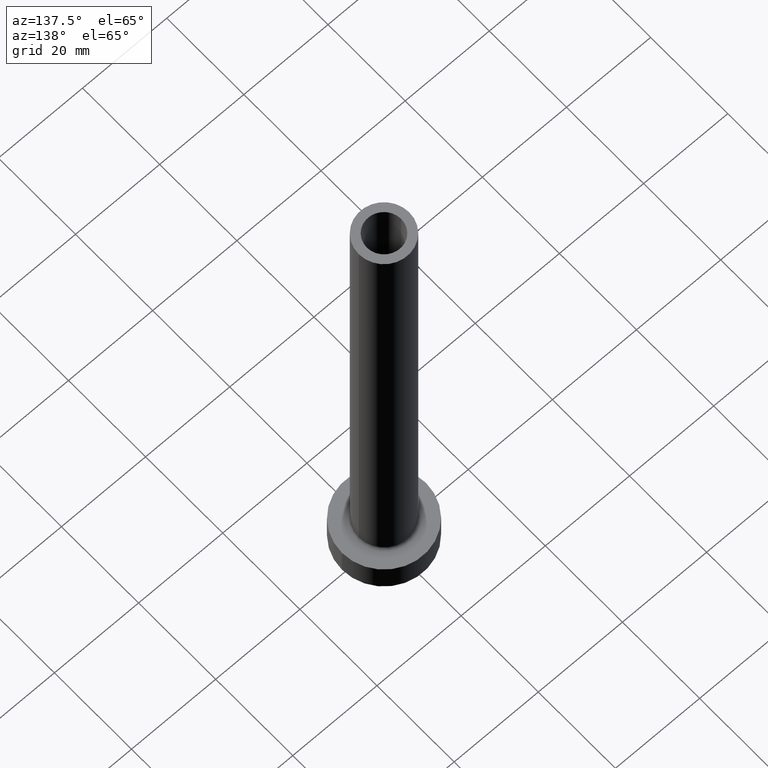
[diagram: clean part render]
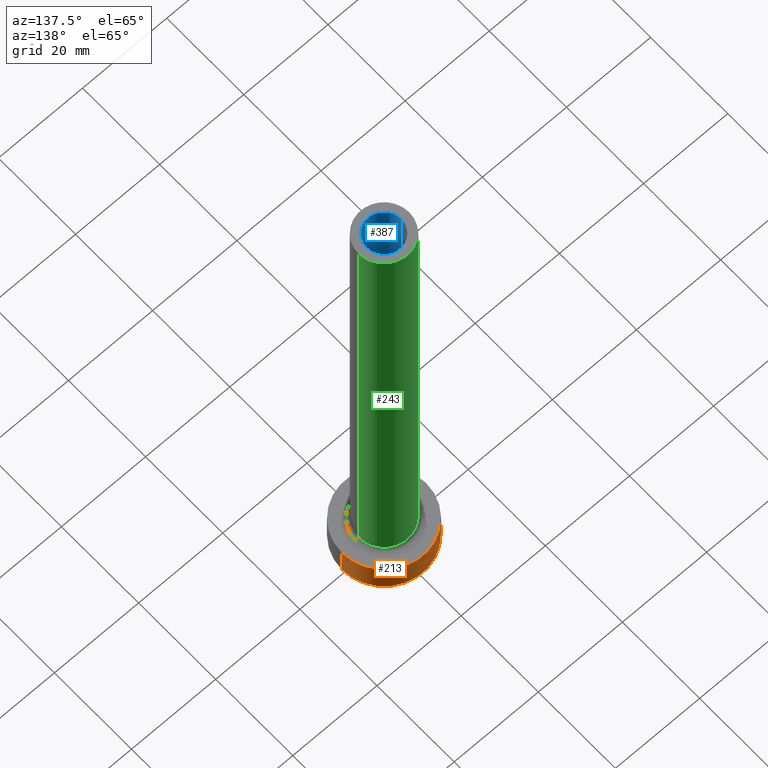
[diagram: same view with three faces highlighted in distinct colors, each labeled with its STEP entity id]
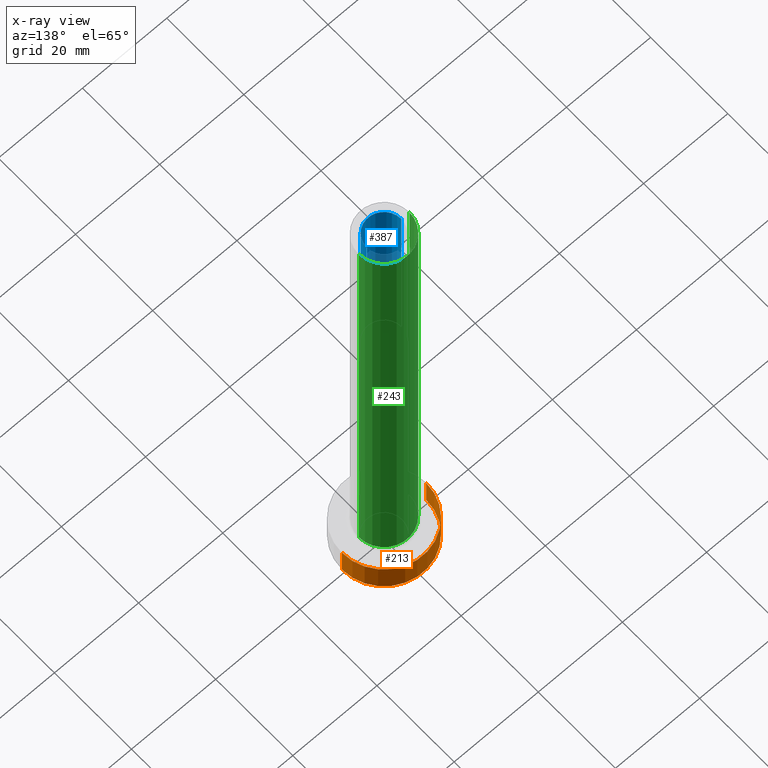
[diagram: x-ray of the same camera — body ghosted, the three highlighted faces saturated]
A machine part, auxiliary view with three faces highlighted in distinct colors.
The next image is the same camera in x-ray (body ghosted, the three faces saturated) — at least one of them is partly hidden behind the body in this view.
Their STEP definitions:

[orange] entity #213 — the highlighted cylindrical surface (partial cylindrical patch) has radius 10 mm, axis along (-0, -0, -1).
#10 = CARTESIAN_POINT ( 'NONE',  ( -10.00000000000000000, 0.000000000000000000, 7.000000000000000000 ) ) ;
#11 = EDGE_CURVE ( 'NONE', #228, #368, #233, .T. ) ;
#16 = EDGE_LOOP ( 'NONE', ( #373, #58, #302, #124 ) ) ;
#41 = AXIS2_PLACEMENT_3D ( 'NONE', #281, #67, #314 ) ;
#58 = ORIENTED_EDGE ( 'NONE', *, *, #129, .T. ) ;
#65 = VERTEX_POINT ( 'NONE', #349 ) ;
#67 = DIRECTION ( 'NONE',  ( 0.000000000000000000, 0.000000000000000000, 1.000000000000000000 ) ) ;
#68 = DIRECTION ( 'NONE',  ( -0.000000000000000000, -0.000000000000000000, -1.000000000000000000 ) ) ;
#71 = DIRECTION ( 'NONE',  ( 0.000000000000000000, 0.000000000000000000, 1.000000000000000000 ) ) ;
#106 = CARTESIAN_POINT ( 'NONE',  ( 10.00000000000000000, 1.224646799147353256E-15, 7.000000000000000000 ) ) ;
#124 = ORIENTED_EDGE ( 'NONE', *, *, #436, .F. ) ;
#129 = EDGE_CURVE ( 'NONE', #228, #459, #386, .T. ) ;
#143 = CARTESIAN_POINT ( 'NONE',  ( 0.000000000000000000, 0.000000000000000000, 7.000000000000000000 ) ) ;
#187 = VECTOR ( 'NONE', #406, 1000.000000000000000 ) ;
#191 = DIRECTION ( 'NONE',  ( -0.000000000000000000, -0.000000000000000000, -1.000000000000000000 ) ) ;
#213 = ADVANCED_FACE ( 'NONE', ( #394 ), #221, .T. ) ;
#217 = CARTESIAN_POINT ( 'NONE',  ( 10.00000000000000000, 1.224646799147353256E-15, 7.000000000000000000 ) ) ;
#221 = CYLINDRICAL_SURFACE ( 'NONE', #307, 10.00000000000000000 ) ;
#227 = EDGE_CURVE ( 'NONE', #459, #65, #457, .T. ) ;
#228 = VERTEX_POINT ( 'NONE', #217 ) ;
#231 = CARTESIAN_POINT ( 'NONE',  ( 10.00000000000000000, 1.224646799147353256E-15, 0.000000000000000000 ) ) ;
#233 = CIRCLE ( 'NONE', #41, 10.00000000000000000 ) ;
#263 = CARTESIAN_POINT ( 'NONE',  ( 0.000000000000000000, 0.000000000000000000, 0.000000000000000000 ) ) ;
#281 = CARTESIAN_POINT ( 'NONE',  ( 0.000000000000000000, 0.000000000000000000, 7.000000000000000000 ) ) ;
#302 = ORIENTED_EDGE ( 'NONE', *, *, #227, .T. ) ;
#307 = AXIS2_PLACEMENT_3D ( 'NONE', #143, #191, #430 ) ;
#314 = DIRECTION ( 'NONE',  ( 1.000000000000000000, 0.000000000000000000, 0.000000000000000000 ) ) ;
#335 = LINE ( 'NONE', #444, #187 ) ;
#349 = CARTESIAN_POINT ( 'NONE',  ( -10.00000000000000000, 0.000000000000000000, 0.000000000000000000 ) ) ;
#359 = VECTOR ( 'NONE', #68, 1000.000000000000000 ) ;
#364 = DIRECTION ( 'NONE',  ( 1.000000000000000000, 0.000000000000000000, 0.000000000000000000 ) ) ;
#368 = VERTEX_POINT ( 'NONE', #10 ) ;
#373 = ORIENTED_EDGE ( 'NONE', *, *, #11, .F. ) ;
#386 = LINE ( 'NONE', #106, #359 ) ;
#394 = FACE_OUTER_BOUND ( 'NONE', #16, .T. ) ;
#406 = DIRECTION ( 'NONE',  ( -0.000000000000000000, -0.000000000000000000, -1.000000000000000000 ) ) ;
#430 = DIRECTION ( 'NONE',  ( -1.000000000000000000, 0.000000000000000000, 0.000000000000000000 ) ) ;
#436 = EDGE_CURVE ( 'NONE', #368, #65, #335, .T. ) ;
#440 = AXIS2_PLACEMENT_3D ( 'NONE', #263, #71, #364 ) ;
#444 = CARTESIAN_POINT ( 'NONE',  ( -10.00000000000000000, 0.000000000000000000, 7.000000000000000000 ) ) ;
#457 = CIRCLE ( 'NONE', #440, 10.00000000000000000 ) ;
#459 = VERTEX_POINT ( 'NONE', #231 ) ;

[blue] entity #387 — the highlighted cylindrical surface (edge-blend (fillet) strip) has radius 4.1 mm, axis along (0, 0, -1).
#4 = DIRECTION ( 'NONE',  ( 1.000000000000000000, 0.000000000000000000, 0.000000000000000000 ) ) ;
#8 = CIRCLE ( 'NONE', #142, 4.099999999999999645 ) ;
#27 = CARTESIAN_POINT ( 'NONE',  ( -4.099999999999999645, 0.000000000000000000, 80.00000000000000000 ) ) ;
#33 = CARTESIAN_POINT ( 'NONE',  ( -4.099999999999999645, 0.000000000000000000, 125.0000000000000000 ) ) ;
#52 = VECTOR ( 'NONE', #370, 1000.000000000000000 ) ;
#56 = VERTEX_POINT ( 'NONE', #27 ) ;
#76 = LINE ( 'NONE', #289, #152 ) ;
#79 = DIRECTION ( 'NONE',  ( 1.000000000000000000, 0.000000000000000000, 0.000000000000000000 ) ) ;
#81 = CARTESIAN_POINT ( 'NONE',  ( 0.000000000000000000, 0.000000000000000000, 80.00000000000000000 ) ) ;
#86 = VERTEX_POINT ( 'NONE', #33 ) ;
#100 = VERTEX_POINT ( 'NONE', #251 ) ;
#130 = ORIENTED_EDGE ( 'NONE', *, *, #157, .T. ) ;
#142 = AXIS2_PLACEMENT_3D ( 'NONE', #81, #392, #79 ) ;
#146 = DIRECTION ( 'NONE',  ( 0.000000000000000000, 0.000000000000000000, -1.000000000000000000 ) ) ;
#152 = VECTOR ( 'NONE', #146, 1000.000000000000000 ) ;
#157 = EDGE_CURVE ( 'NONE', #245, #100, #76, .T. ) ;
#160 = LINE ( 'NONE', #201, #52 ) ;
#184 = FACE_OUTER_BOUND ( 'NONE', #197, .T. ) ;
#194 = CARTESIAN_POINT ( 'NONE',  ( 0.000000000000000000, 0.000000000000000000, 125.0000000000000000 ) ) ;
#197 = EDGE_LOOP ( 'NONE', ( #280, #130, #310, #238 ) ) ;
#201 = CARTESIAN_POINT ( 'NONE',  ( -4.099999999999999645, 0.000000000000000000, 125.0000000000000000 ) ) ;
#225 = AXIS2_PLACEMENT_3D ( 'NONE', #194, #332, #299 ) ;
#234 = AXIS2_PLACEMENT_3D ( 'NONE', #261, #298, #4 ) ;
#238 = ORIENTED_EDGE ( 'NONE', *, *, #453, .F. ) ;
#245 = VERTEX_POINT ( 'NONE', #358 ) ;
#251 = CARTESIAN_POINT ( 'NONE',  ( 4.099999999999999645, 5.021051876504146399E-16, 80.00000000000000000 ) ) ;
#261 = CARTESIAN_POINT ( 'NONE',  ( 0.000000000000000000, 0.000000000000000000, 125.0000000000000000 ) ) ;
#268 = EDGE_CURVE ( 'NONE', #86, #245, #342, .T. ) ;
#273 = CYLINDRICAL_SURFACE ( 'NONE', #225, 4.099999999999999645 ) ;
#280 = ORIENTED_EDGE ( 'NONE', *, *, #268, .T. ) ;
#289 = CARTESIAN_POINT ( 'NONE',  ( 4.099999999999999645, 5.021051876504146399E-16, 125.0000000000000000 ) ) ;
#298 = DIRECTION ( 'NONE',  ( 0.000000000000000000, 0.000000000000000000, 1.000000000000000000 ) ) ;
#299 = DIRECTION ( 'NONE',  ( -1.000000000000000000, 0.000000000000000000, 0.000000000000000000 ) ) ;
#310 = ORIENTED_EDGE ( 'NONE', *, *, #350, .F. ) ;
#332 = DIRECTION ( 'NONE',  ( 0.000000000000000000, 0.000000000000000000, -1.000000000000000000 ) ) ;
#342 = CIRCLE ( 'NONE', #234, 4.099999999999999645 ) ;
#350 = EDGE_CURVE ( 'NONE', #56, #100, #8, .T. ) ;
#358 = CARTESIAN_POINT ( 'NONE',  ( 4.099999999999999645, 5.021051876504146399E-16, 125.0000000000000000 ) ) ;
#370 = DIRECTION ( 'NONE',  ( 0.000000000000000000, 0.000000000000000000, -1.000000000000000000 ) ) ;
#387 = ADVANCED_FACE ( 'NONE', ( #184 ), #273, .F. ) ;
#392 = DIRECTION ( 'NONE',  ( 0.000000000000000000, 0.000000000000000000, 1.000000000000000000 ) ) ;
#453 = EDGE_CURVE ( 'NONE', #86, #56, #160, .T. ) ;

[green] entity #243 — the highlighted cylindrical surface (edge-blend (fillet) strip) has radius 6 mm, axis along (-0, -0, -1).
#6 = DIRECTION ( 'NONE',  ( -1.000000000000000000, 0.000000000000000000, 0.000000000000000000 ) ) ;
#12 = DIRECTION ( 'NONE',  ( 1.000000000000000000, 0.000000000000000000, 0.000000000000000000 ) ) ;
#15 = CIRCLE ( 'NONE', #258, 6.000000000000000888 ) ;
#26 = EDGE_CURVE ( 'NONE', #51, #365, #15, .T. ) ;
#37 = ORIENTED_EDGE ( 'NONE', *, *, #26, .F. ) ;
#51 = VERTEX_POINT ( 'NONE', #61 ) ;
#61 = CARTESIAN_POINT ( 'NONE',  ( 6.000000000000000888, 7.347880794884120722E-16, 125.0000000000000000 ) ) ;
#97 = DIRECTION ( 'NONE',  ( 1.000000000000000000, 0.000000000000000000, 0.000000000000000000 ) ) ;
#107 = AXIS2_PLACEMENT_3D ( 'NONE', #116, #181, #6 ) ;
#113 = AXIS2_PLACEMENT_3D ( 'NONE', #297, #325, #12 ) ;
#115 = CYLINDRICAL_SURFACE ( 'NONE', #107, 6.000000000000000888 ) ;
#116 = CARTESIAN_POINT ( 'NONE',  ( 0.000000000000000000, 0.000000000000000000, 125.0000000000000000 ) ) ;
#121 = ORIENTED_EDGE ( 'NONE', *, *, #422, .F. ) ;
#131 = EDGE_LOOP ( 'NONE', ( #37, #165, #196, #121 ) ) ;
#134 = CARTESIAN_POINT ( 'NONE',  ( 0.000000000000000000, 0.000000000000000000, 125.0000000000000000 ) ) ;
#151 = CARTESIAN_POINT ( 'NONE',  ( -6.000000000000000888, 0.000000000000000000, 125.0000000000000000 ) ) ;
#154 = FACE_OUTER_BOUND ( 'NONE', #131, .T. ) ;
#161 = VERTEX_POINT ( 'NONE', #180 ) ;
#165 = ORIENTED_EDGE ( 'NONE', *, *, #235, .T. ) ;
#175 = VERTEX_POINT ( 'NONE', #253 ) ;
#180 = CARTESIAN_POINT ( 'NONE',  ( 6.000000000000000888, 7.347880794884120722E-16, 7.699999999999998401 ) ) ;
#181 = DIRECTION ( 'NONE',  ( -0.000000000000000000, -0.000000000000000000, -1.000000000000000000 ) ) ;
#196 = ORIENTED_EDGE ( 'NONE', *, *, #292, .T. ) ;
#235 = EDGE_CURVE ( 'NONE', #51, #161, #294, .T. ) ;
#237 = DIRECTION ( 'NONE',  ( -0.000000000000000000, -0.000000000000000000, -1.000000000000000000 ) ) ;
#243 = ADVANCED_FACE ( 'NONE', ( #154 ), #115, .T. ) ;
#244 = DIRECTION ( 'NONE',  ( 0.000000000000000000, 0.000000000000000000, 1.000000000000000000 ) ) ;
#250 = VECTOR ( 'NONE', #437, 1000.000000000000000 ) ;
#253 = CARTESIAN_POINT ( 'NONE',  ( -6.000000000000000888, 0.000000000000000000, 7.699999999999998401 ) ) ;
#258 = AXIS2_PLACEMENT_3D ( 'NONE', #134, #244, #97 ) ;
#292 = EDGE_CURVE ( 'NONE', #161, #175, #344, .T. ) ;
#294 = LINE ( 'NONE', #326, #250 ) ;
#297 = CARTESIAN_POINT ( 'NONE',  ( 0.000000000000000000, 0.000000000000000000, 7.699999999999998401 ) ) ;
#325 = DIRECTION ( 'NONE',  ( 0.000000000000000000, 0.000000000000000000, 1.000000000000000000 ) ) ;
#326 = CARTESIAN_POINT ( 'NONE',  ( 6.000000000000000888, 7.347880794884120722E-16, 125.0000000000000000 ) ) ;
#333 = VECTOR ( 'NONE', #237, 1000.000000000000000 ) ;
#344 = CIRCLE ( 'NONE', #113, 6.000000000000000888 ) ;
#365 = VERTEX_POINT ( 'NONE', #151 ) ;
#372 = CARTESIAN_POINT ( 'NONE',  ( -6.000000000000000888, 0.000000000000000000, 125.0000000000000000 ) ) ;
#404 = LINE ( 'NONE', #372, #333 ) ;
#422 = EDGE_CURVE ( 'NONE', #365, #175, #404, .T. ) ;
#437 = DIRECTION ( 'NONE',  ( -0.000000000000000000, -0.000000000000000000, -1.000000000000000000 ) ) ;